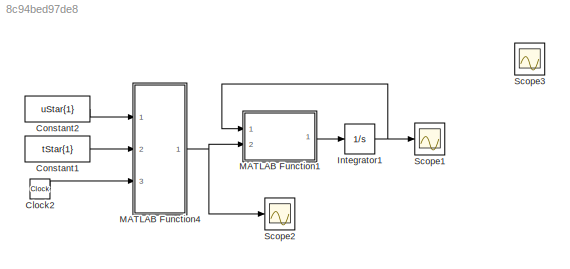
MODEL slx_8c94bed97de8
KIND model
CONFIG AbsTol = auto
CONFIG FixedStep = auto
CONFIG MaxStep = 1e-4
CONFIG MinStep = auto
CONFIG RelTol = 1e-6
CONFIG SampleTimeConstraint = Unconstrained
CONFIG Solver = ode45
CONFIG SolverMode = Auto
CONFIG SolverName = ode45
CONFIG StartTime = 0.0
CONFIG StopTime = 2
BLOCK [Clock] Clock2
BLOCK [Constant] Constant1
  Value = tStar{1}
BLOCK [Constant] Constant2
  Value = uStar{1}
BLOCK [Integrator] Integrator1
  InitialCondition = x0
  Ports = [1, 1]
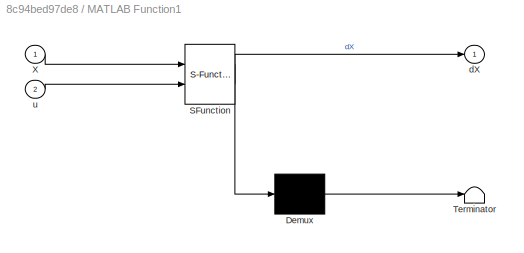
BLOCK [SubSystem] MATLAB Function1
  ErrorFcn = Stateflow.Translate.translate
  PermitHierarchicalResolution = ExplicitOnly
  Ports = [2, 1]
  RequestExecContextInheritance = off
  SFBlockType = MATLAB Function
  TreatAsAtomicUnit = on
  Variant = off
BLOCK [Demux] MATLAB Function1/ Demux 
  Outputs = 1
  Ports = [1, 1]
BLOCK [S-Function] MATLAB Function1/ SFunction 
  EnableBusSupport = on
  FunctionName = sf_sfun
  PortCounts = [2 2]
  Ports = [2, 2]
  SFunctionDeploymentMode = off
  Tag = Stateflow S-Function testOpenLoop 1
BLOCK [Terminator] MATLAB Function1/ Terminator 
BLOCK [Inport] MATLAB Function1/X
  IconDisplay = Port number
BLOCK [Outport] MATLAB Function1/dX
  IconDisplay = Port number
BLOCK [Inport] MATLAB Function1/u
  IconDisplay = Port number
  Port = 2
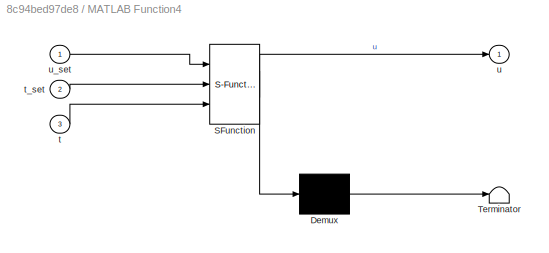
BLOCK [SubSystem] MATLAB Function4
  ErrorFcn = Stateflow.Translate.translate
  PermitHierarchicalResolution = ExplicitOnly
  Ports = [3, 1]
  RequestExecContextInheritance = off
  SFBlockType = MATLAB Function
  TreatAsAtomicUnit = on
  Variant = off
BLOCK [Demux] MATLAB Function4/ Demux 
  Outputs = 1
  Ports = [1, 1]
BLOCK [S-Function] MATLAB Function4/ SFunction 
  EnableBusSupport = on
  FunctionName = sf_sfun
  PortCounts = [3 2]
  Ports = [3, 2]
  SFunctionDeploymentMode = off
  Tag = Stateflow S-Function testOpenLoop 2
BLOCK [Terminator] MATLAB Function4/ Terminator 
BLOCK [Inport] MATLAB Function4/t
  IconDisplay = Port number
  Port = 3
BLOCK [Inport] MATLAB Function4/t_set
  IconDisplay = Port number
  Port = 2
BLOCK [Outport] MATLAB Function4/u
  IconDisplay = Port number
BLOCK [Inport] MATLAB Function4/u_set
  IconDisplay = Port number
BLOCK [Scope] Scope1
  Ports = [1]
  ScopeSpecificationString = Simulink.scopes.TimeScopeBlockCfg('CurrentConfiguration', extmgr.ConfigurationSet(extmgr.Configuration('Core','General UI',true),extmgr.Configuration('Core','Source UI',true),extmgr.Configuration('Sources','WiredSimulink',true,'DataLoggingVariableName','ScopeData1'),extmgr.Configuration('Visuals','Time Domain',true,'SerializedDisplays',{struct('MinYLimReal','-0.20197','MaxYLimReal','0.49266','YLab...<+1494ch>
BLOCK [Scope] Scope2
  Ports = [1]
  ScopeSpecificationString = Simulink.scopes.TimeScopeBlockCfg('CurrentConfiguration', extmgr.ConfigurationSet(extmgr.Configuration('Core','General UI',true),extmgr.Configuration('Core','Source UI',true),extmgr.Configuration('Sources','WiredSimulink',true,'DataLoggingVariableName','ScopeData2'),extmgr.Configuration('Visuals','Time Domain',true,'SerializedDisplays',{struct('MinYLimReal','-3.95153','MaxYLimReal','4.08328','YLab...<+1450ch>
BLOCK [Scope] Scope3
  IOType = viewer
  Ports = []
  ScopeSpecificationString = Simulink.scopes.TimeScopeBlockCfg('CurrentConfiguration', extmgr.ConfigurationSet(extmgr.Configuration('Core','General UI',true),extmgr.Configuration('Core','Source UI',true),extmgr.Configuration('Sources','WiredSimulink',true,'DataLoggingVariableName','ScopeData3'),extmgr.Configuration('Visuals','Time Domain',true,'SerializedDisplays',{struct('MinYLimReal','-11.4016','MaxYLimReal','3.16282','YLab...<+1388ch>
LINE Clock2:1 -> MATLAB Function4:3
LINE Constant1:1 -> MATLAB Function4:2
LINE Constant2:1 -> MATLAB Function4:1
NET Integrator1:1 -> MATLAB Function1:1, Scope1:1
LINE MATLAB Function1:1 -> Integrator1:1
NET MATLAB Function4:1 -> MATLAB Function1:2, Scope2:1
note: NET lines group one-source signal fan-out (src -> all destinations, sorted); 1:1 wires keep LINE
CHART MATLAB Function1 states=1 transitions=1
  STATE_LABEL 'eML_blk_kernel()'
  STATE_LABEL "SCRIPT:\nfunction dX = fcn(X, u)\n%#codegen\n\n% X = [0 pi/2 0 0]';\n% u = 0;\n%%\nx = X(1:2);\nx(2) = x(2) + pi/2;\nxdot = X(3:4);\n\nM = ([[2,-sin(x(2,:))/2];[-sin(x(2,:))/2,1/3]]);\nf = ([[u(:,1)-xdot(1,:)/10+(xdot(2,:)^2*cos(x(2,:)))/2];[-xdot(2,:)/100-(981*cos(x(2,:)))/200]]);\n\nxddot = M\\f;\n\ndX = [xdot; xddot];\n\n\n% y = u;"
CHART MATLAB Function4 states=1 transitions=1
  STATE_LABEL 'eML_blk_kernel()'
  STATE_LABEL "SCRIPT:\nfunction u = interp_u(u_set, t_set, t)\n%#codegen\n\nif sum(t_set) < 1\n\tu = 0;\nelse\n\tu = interp1(t_set', u_set', t,'spline');\nend\n"
